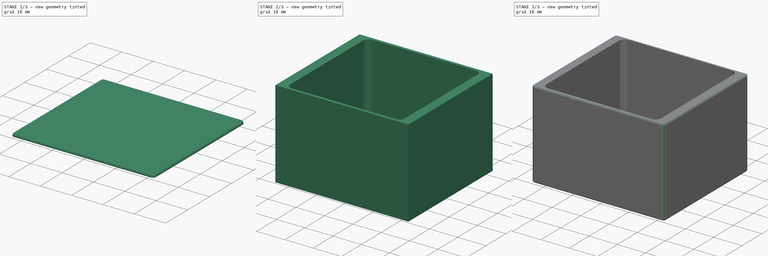
[diagram: build sequence overview — one tinted view per stage of 3, left to right]
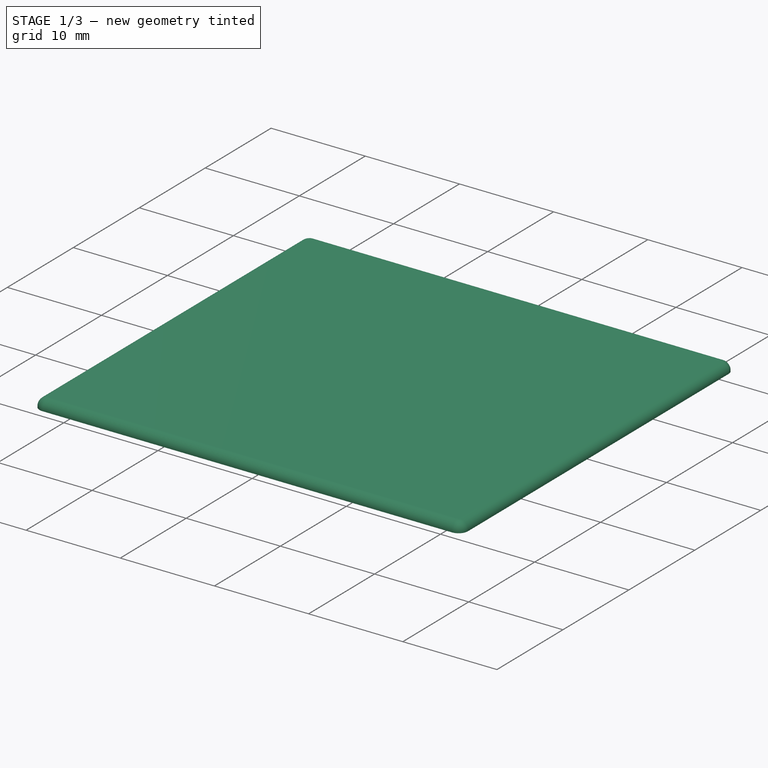
[diagram: stage 1 of 3 — iso view after this stage's code; geometry added in this stage tinted green]
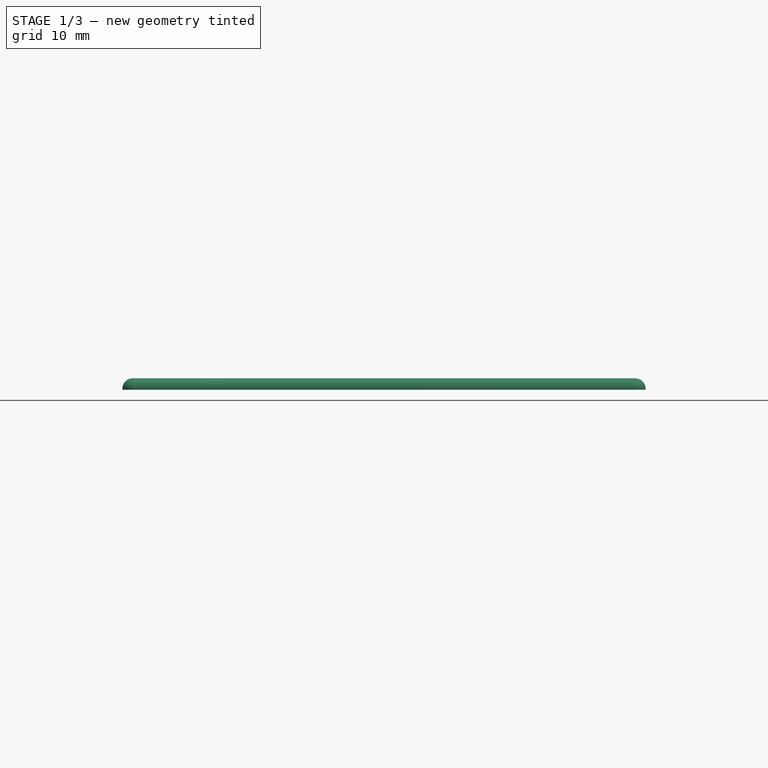
[diagram: stage 1 of 3 — front view after this stage's code; geometry added in this stage tinted green]
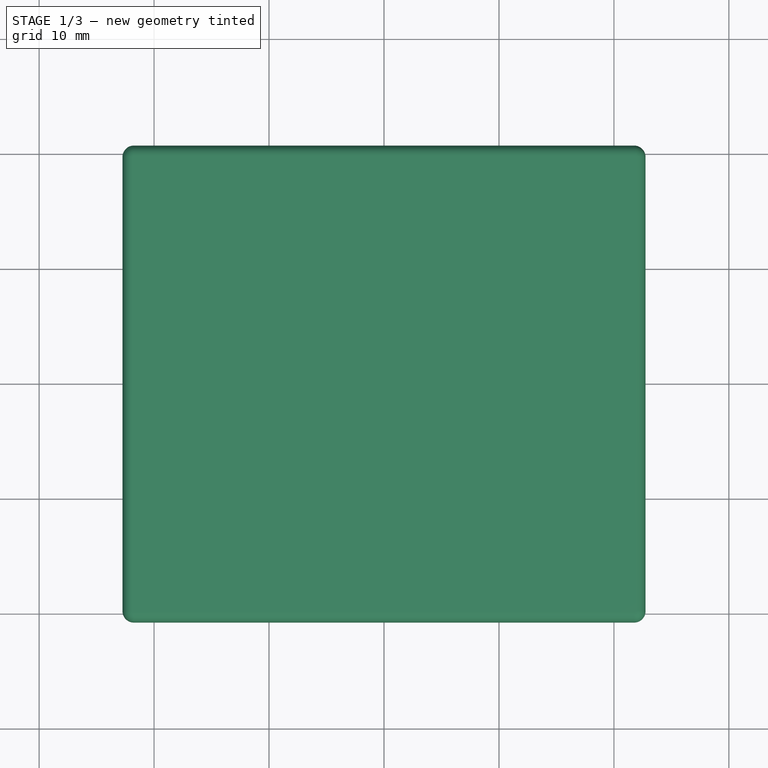
[diagram: stage 1 of 3 — top view after this stage's code; geometry added in this stage tinted green]
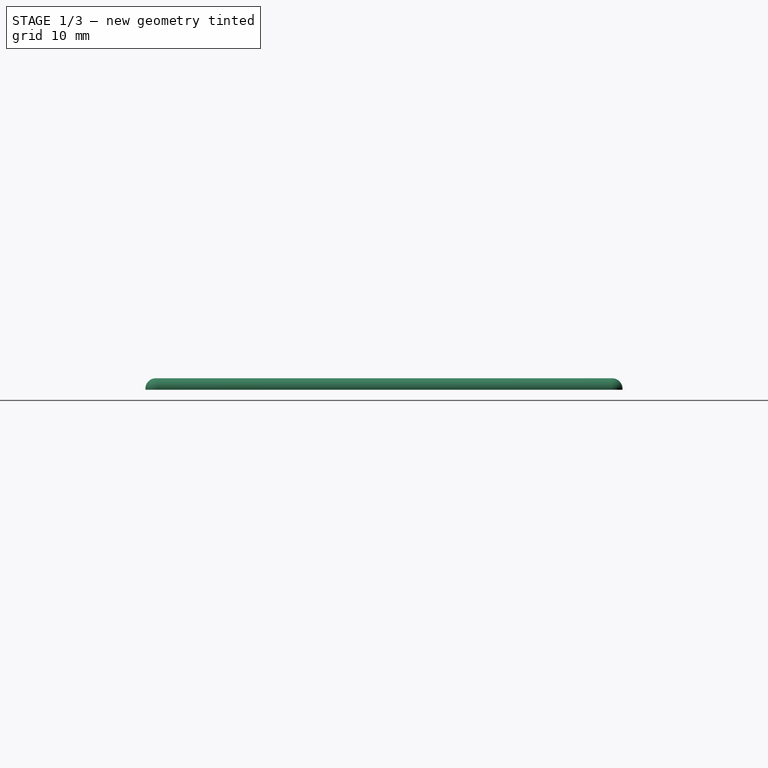
[diagram: stage 1 of 3 — right view after this stage's code; geometry added in this stage tinted green]
FCSTD DOCUMENT  (FreeCAD 0.21R33694 (Git))
Label: 热风枪固定铁盒
License: All rights reserved
LicenseURL: http://en.wikipedia.org/wiki/All_rights_reserved
objects: Sketcher::SketchObject×4, PartDesign::Fillet×4, PartDesign::Pad×2, PartDesign::Pocket×2, PartDesign::Body×2, App::Part×2
note: 22 computed .brp shape members not serialized (recipe doc carries the construction recipe); baked Part::Feature solids carry a one-line shape summary decoded from their .brp

FEATURE [PartDesign::Body] Body  label="实体"
  Group = -> [Sketch,Pad,Sketch001,Pocket,Fillet,Fillet001,Sketch002,Pocket001]
  Origin = -> Origin
  Tip = -> Pocket001
FEATURE [App::Part] Part  label="盒体"
  Group = -> [Body]
  Origin = -> Origin001
FEATURE [Sketcher::SketchObject] Sketch003
  FullyConstrained = true
  MapMode = 5
  Support = -> [XY_Plane003]
  sketch-geometry (4):
    g0: LineSegment StartX=-22.75 StartY=20.75 StartZ=0 EndX=22.75 EndY=20.75 EndZ=0
    g1: LineSegment StartX=22.75 StartY=20.75 StartZ=0 EndX=22.75 EndY=-20.75 EndZ=0
    g2: LineSegment StartX=22.75 StartY=-20.75 StartZ=0 EndX=-22.75 EndY=-20.75 EndZ=0
    g3: LineSegment StartX=-22.75 StartY=-20.75 StartZ=0 EndX=-22.75 EndY=20.75 EndZ=0
  constraints (11):
    c: Coincident(g0,g1)
    c: Coincident(g1,g2)
    c: Coincident(g2,g3)
    c: Coincident(g3,g0)
    c: Horizontal(g0)
    c: Horizontal(g2)
    c: Vertical(g1)
    c: Vertical(g3)
    c: DistanceX(g0,g0) = 45.5
    c: DistanceY(g3,g3) = 41.5
    c: Symmetric(g2,g0,g-1)
FEATURE [PartDesign::Pad] Pad001
  Direction = (0,0,1)
  Length = 1
  Length2 = 10
  Profile = -> Sketch003
  ReferenceAxis = -> Sketch003 [N_Axis]
  Type = 0
FEATURE [PartDesign::Fillet] Fillet002
  Base = -> Pad001 [Edge8,Edge1,Edge5,Edge2]
  BaseFeature = -> Pad001
  Radius = 1
  SupportTransform = false
  UseAllEdges = false
FEATURE [PartDesign::Fillet] Fillet003
  Base = -> Fillet002 [Edge20]
  BaseFeature = -> Fillet002
  Radius = 0.9
  SupportTransform = false
  UseAllEdges = false
FEATURE [PartDesign::Body] Body001  label="实体001"
  Group = -> [Sketch003,Pad001,Fillet002,Fillet003]
  Origin = -> Origin003
  Tip = -> Fillet003
FEATURE [App::Part] Part001  label="盖子"
  Group = -> [Body001]
  Origin = -> Origin002
  Placement = pos=(0,0,45) rot=(0,0,1;0rad)
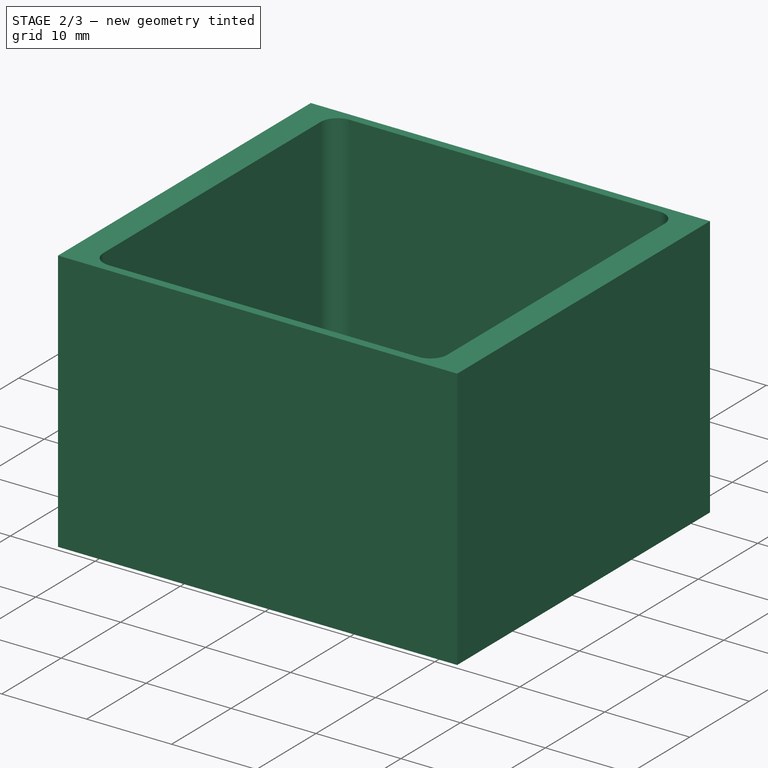
[diagram: stage 2 of 3 — iso view after this stage's code; geometry added in this stage tinted green]
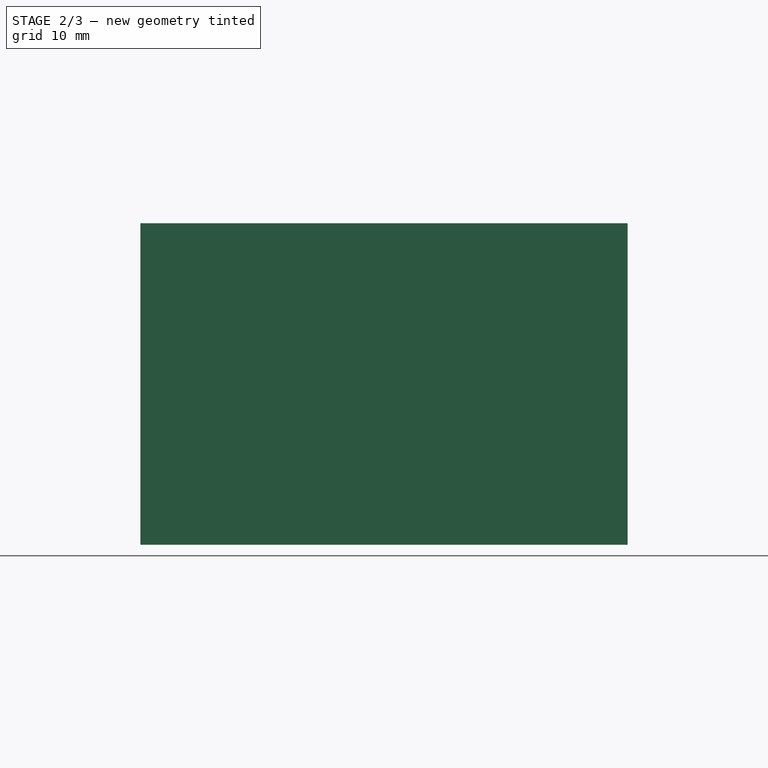
[diagram: stage 2 of 3 — front view after this stage's code; geometry added in this stage tinted green]
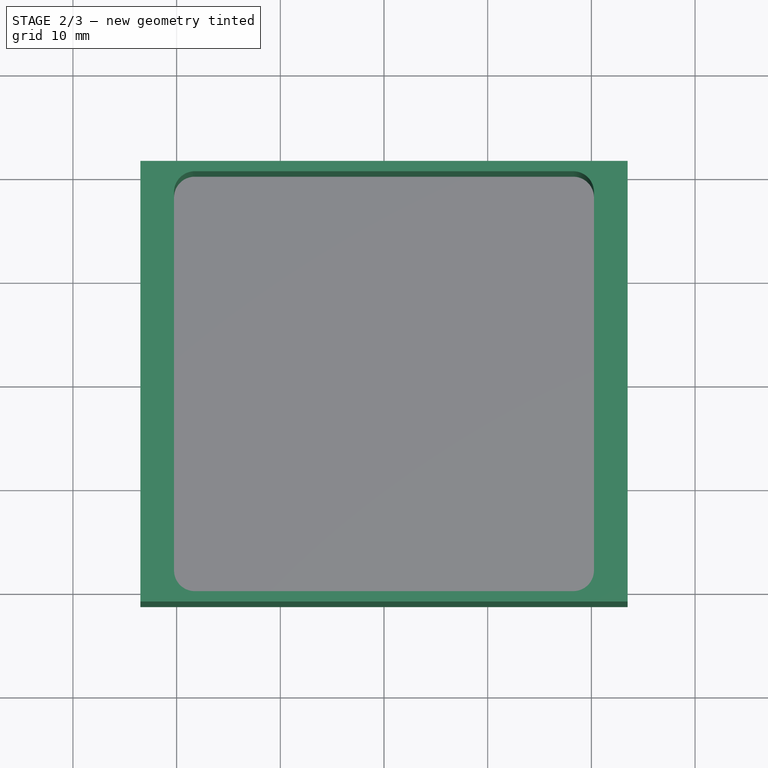
[diagram: stage 2 of 3 — top view after this stage's code; geometry added in this stage tinted green]
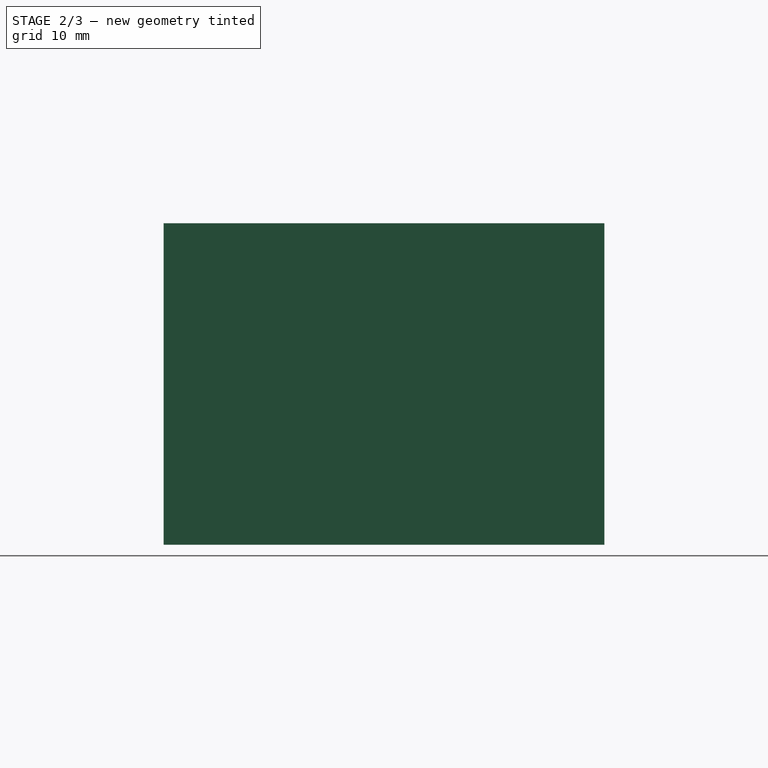
[diagram: stage 2 of 3 — right view after this stage's code; geometry added in this stage tinted green]
FEATURE [Sketcher::SketchObject] Sketch
  FullyConstrained = true
  MapMode = 5
  Support = -> [XY_Plane]
  sketch-geometry (4):
    g0: LineSegment StartX=-23.5 StartY=21.25 StartZ=0 EndX=23.5 EndY=21.25 EndZ=0
    g1: LineSegment StartX=23.5 StartY=21.25 StartZ=0 EndX=23.5 EndY=-21.25 EndZ=0
    g2: LineSegment StartX=23.5 StartY=-21.25 StartZ=0 EndX=-23.5 EndY=-21.25 EndZ=0
    g3: LineSegment StartX=-23.5 StartY=-21.25 StartZ=0 EndX=-23.5 EndY=21.25 EndZ=0
  constraints (11):
    c: Coincident(g0,g1)
    c: Coincident(g1,g2)
    c: Coincident(g2,g3)
    c: Coincident(g3,g0)
    c: Horizontal(g0)
    c: Horizontal(g2)
    c: Vertical(g1)
    c: Vertical(g3)
    c: DistanceX(g2,g2) = 47
    c: DistanceY(g3,g3) = 42.5
    c: Symmetric(g2,g0,g-1)
FEATURE [PartDesign::Pad] Pad
  Direction = (0,0,1)
  Length = 31
  Length2 = 10
  Profile = -> Sketch
  ReferenceAxis = -> Sketch [N_Axis]
  Type = 0
FEATURE [Sketcher::SketchObject] Sketch001
  ExternalGeometry = -> [Pad]
  FullyConstrained = true
  MapMode = 5
  Placement = pos=(0,0,31) rot=(0,0,1;0rad)
  Support = -> [Pad]
  sketch-geometry (8):
    g0: LineSegment StartX=-18.25 StartY=20.25 StartZ=0 EndX=18.25 EndY=20.25 EndZ=0
    g1: LineSegment StartX=20.25 StartY=18.25 StartZ=0 EndX=20.25 EndY=-18.25 EndZ=0
    g2: LineSegment StartX=18.25 StartY=-20.25 StartZ=0 EndX=-18.25 EndY=-20.25 EndZ=0
    g3: LineSegment StartX=-20.25 StartY=-18.25 StartZ=0 EndX=-20.25 EndY=18.25 EndZ=0
    g4: ArcOfCircle CenterX=-18.25 CenterY=18.25 CenterZ=0 NormalX=0 NormalY=0 NormalZ=1 AngleXU=0 Radius=2 StartAngle=1.5708 EndAngle=3.14159
    g5: ArcOfCircle CenterX=18.25 CenterY=18.25 CenterZ=0 NormalX=0 NormalY=0 NormalZ=1 AngleXU=0 Radius=2 StartAngle=7e-16 EndAngle=1.5708
    g6: ArcOfCircle CenterX=-18.25 CenterY=-18.25 CenterZ=0 NormalX=0 NormalY=0 NormalZ=1 AngleXU=0 Radius=2 StartAngle=3.14159 EndAngle=4.71239
    g7: ArcOfCircle CenterX=18.25 CenterY=-18.25 CenterZ=0 NormalX=0 NormalY=0 NormalZ=1 AngleXU=0 Radius=2 StartAngle=4.71239 EndAngle=6.28319
  constraints (20):
    c: Horizontal(g0)
    c: Horizontal(g2)
    c: Vertical(g1)
    c: Vertical(g3)
    c: Tangent(g3,g4) = 1.5708
    c: Tangent(g0,g4) = 1.5708
    c: Tangent(g0,g5) = 1.5708
    c: Tangent(g1,g5) = 1.5708
    c: Tangent(g3,g6) = 1.5708
    c: Tangent(g2,g6) = 1.5708
    c: Tangent(g2,g7) = 1.5708
    c: Tangent(g1,g7) = 1.5708
    c: Radius(g7) = 2
    c: Radius(g6) = 2
    c: Radius(g4) = 2
    c: Radius(g5) = 2
    c: Distance(g3,g1) = 40.5
    c: Distance(g0,g2) = 40.5
    c: Distance(g2,g-3) = 1
    c: Distance(g-1,g3) = 20.25
FEATURE [PartDesign::Pocket] Pocket
  BaseFeature = -> Pad
  Direction = (0,0,-1)
  Length = 30
  Length2 = 5
  Profile = -> Sketch001
  ReferenceAxis = -> Sketch001 [N_Axis]
  Type = 0
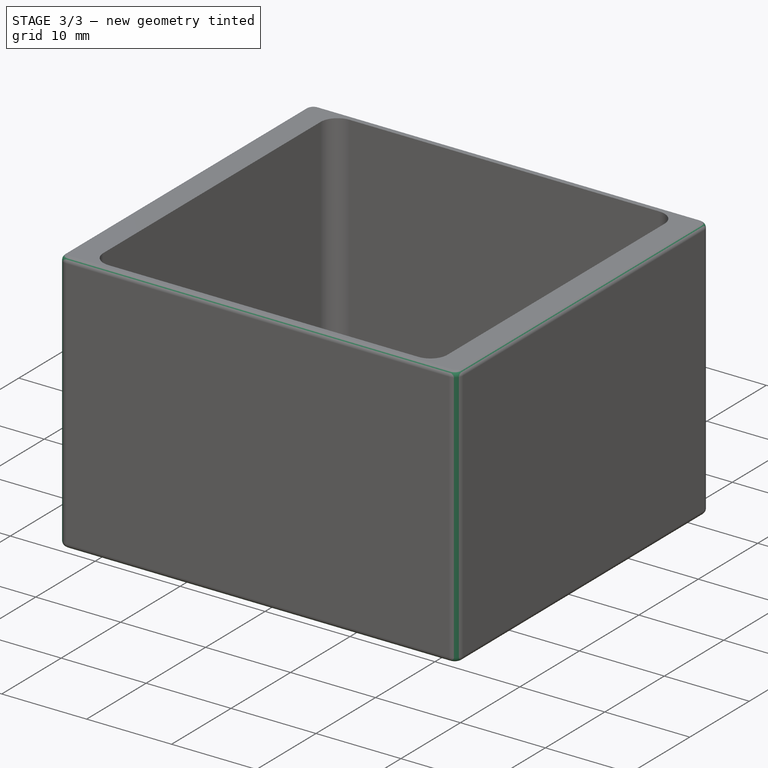
[diagram: stage 3 of 3 — iso view after this stage's code; geometry added in this stage tinted green]
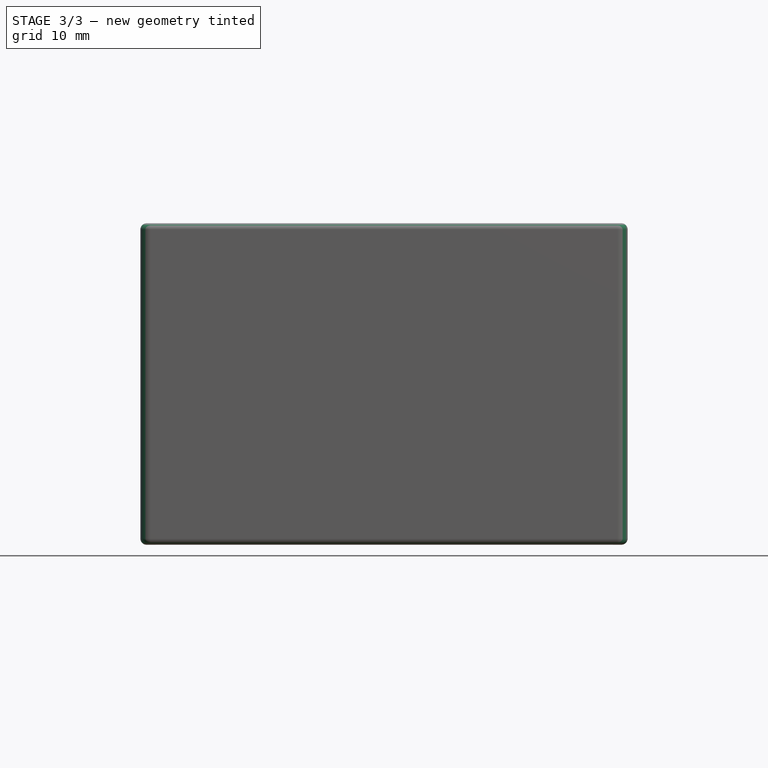
[diagram: stage 3 of 3 — front view after this stage's code; geometry added in this stage tinted green]
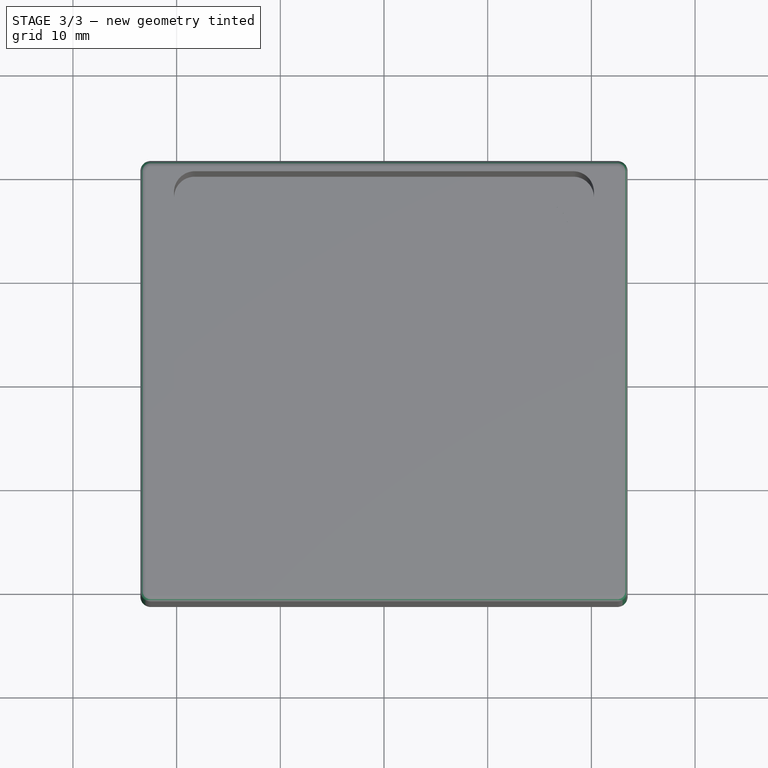
[diagram: stage 3 of 3 — top view after this stage's code; geometry added in this stage tinted green]
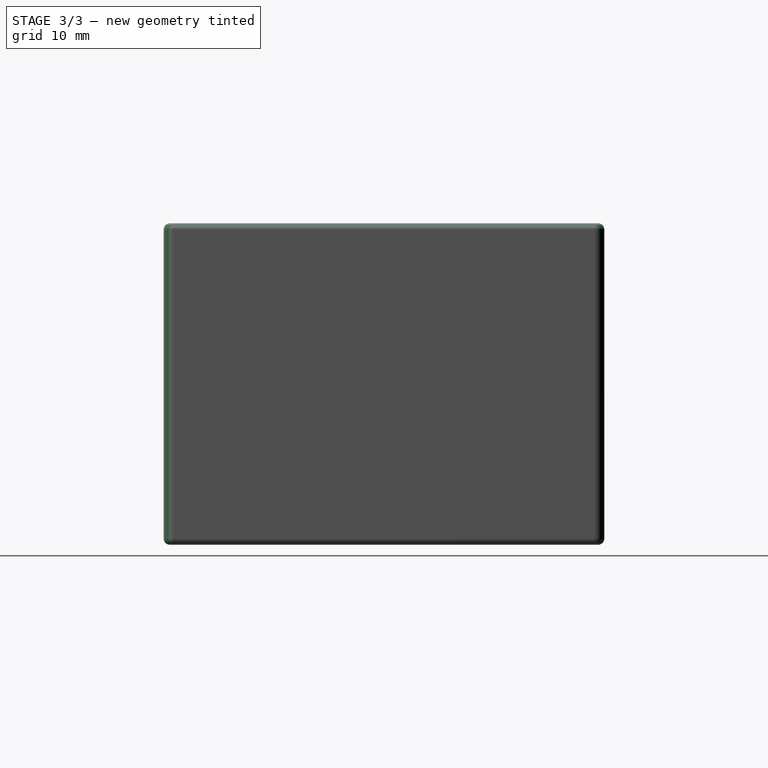
[diagram: stage 3 of 3 — right view after this stage's code; geometry added in this stage tinted green]
FEATURE [PartDesign::Fillet] Fillet
  Base = -> Pocket [Edge8,Edge2,Edge5,Edge1]
  BaseFeature = -> Pocket
  Radius = 1
  SupportTransform = false
  UseAllEdges = false
FEATURE [PartDesign::Fillet] Fillet001
  Base = -> Fillet [Edge20,Edge11]
  BaseFeature = -> Fillet
  Radius = 0.6
  SupportTransform = false
  UseAllEdges = false
FEATURE [Sketcher::SketchObject] Sketch002
  ExternalGeometry = -> [Fillet001]
  FullyConstrained = true
  MapMode = 5
  Placement = pos=(0,0,1) rot=(0,0,1;0rad)
  Support = -> [Fillet001]
  sketch-geometry (8):
    g0: ArcOfCircle CenterX=-15.25 CenterY=15.25 CenterZ=0 NormalX=0 NormalY=0 NormalZ=1 AngleXU=0 Radius=2.5 StartAngle=0 EndAngle=3.14159
    g1: ArcOfCircle CenterX=-15.25 CenterY=10.25 CenterZ=0 NormalX=0 NormalY=0 NormalZ=1 AngleXU=0 Radius=2.5 StartAngle=3.14159 EndAngle=6.28319
    g2: LineSegment StartX=-17.75 StartY=15.25 StartZ=0 EndX=-17.75 EndY=10.25 EndZ=0
    g3: LineSegment StartX=-12.75 StartY=10.25 StartZ=0 EndX=-12.75 EndY=15.25 EndZ=0
    g4: ArcOfCircle CenterX=15.25 CenterY=15.25 CenterZ=0 NormalX=0 NormalY=0 NormalZ=1 AngleXU=0 Radius=2.5 StartAngle=0 EndAngle=3.14159
    g5: ArcOfCircle CenterX=15.25 CenterY=10.25 CenterZ=0 NormalX=0 NormalY=0 NormalZ=1 AngleXU=0 Radius=2.5 StartAngle=3.14159 EndAngle=6.28319
    g6: LineSegment StartX=12.75 StartY=15.25 StartZ=0 EndX=12.75 EndY=10.25 EndZ=0
    g7: LineSegment StartX=17.75 StartY=10.25 StartZ=0 EndX=17.75 EndY=15.25 EndZ=0
  constraints (20):
    c: Tangent(g0,g2) = -1.5708
    c: Tangent(g2,g1) = -1.5708
    c: Tangent(g1,g3) = -1.5708
    c: Tangent(g3,g0) = -1.5708
    c: Equal(g0,g1)
    c: Tangent(g4,g6) = -1.5708
    c: Tangent(g6,g5) = -1.5708
    c: Tangent(g5,g7) = -1.5708
    c: Tangent(g7,g4) = -1.5708
    c: Equal(g4,g5)
    c: Vertical(g6)
    c: Vertical(g3)
    c: Equal(g3,g6)
    c: Equal(g1,g5)
    c: Horizontal(g5,g1)
    c: Distance(g1,g-4) = 2.5
    c: Distance(g5,g-6) = 2.5
    c: Distance(g5,g5) = 5
    c: Distance(g4,g-3) = 5
    c: Distance(g5,g4) = 5
FEATURE [PartDesign::Pocket] Pocket001
  BaseFeature = -> Fillet001
  Direction = (0,0,-1)
  Length = 5
  Length2 = 5
  Profile = -> Sketch002
  ReferenceAxis = -> Sketch002 [N_Axis]
  Type = 1
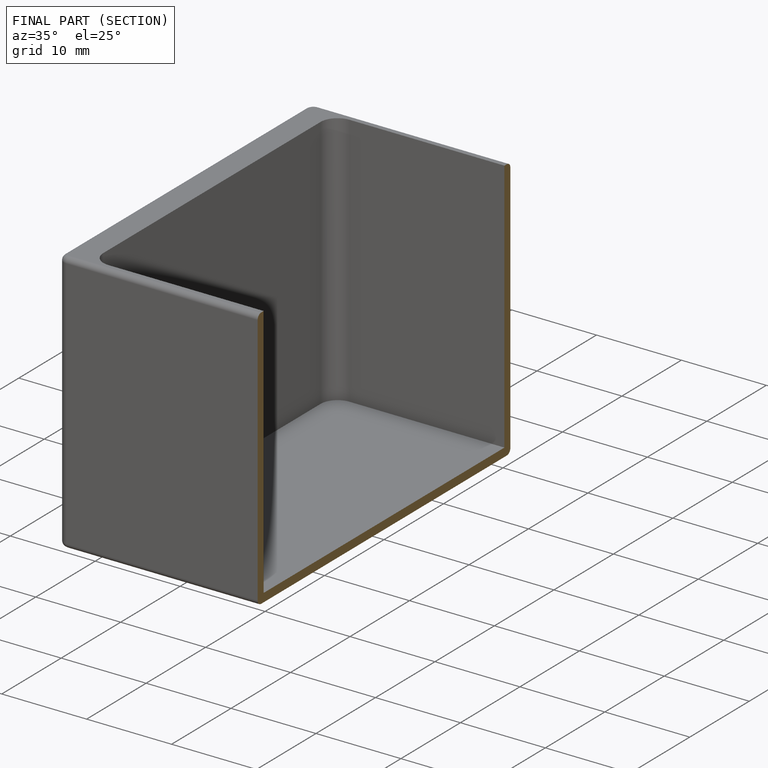
[diagram: finished part — half-section view (interior)]
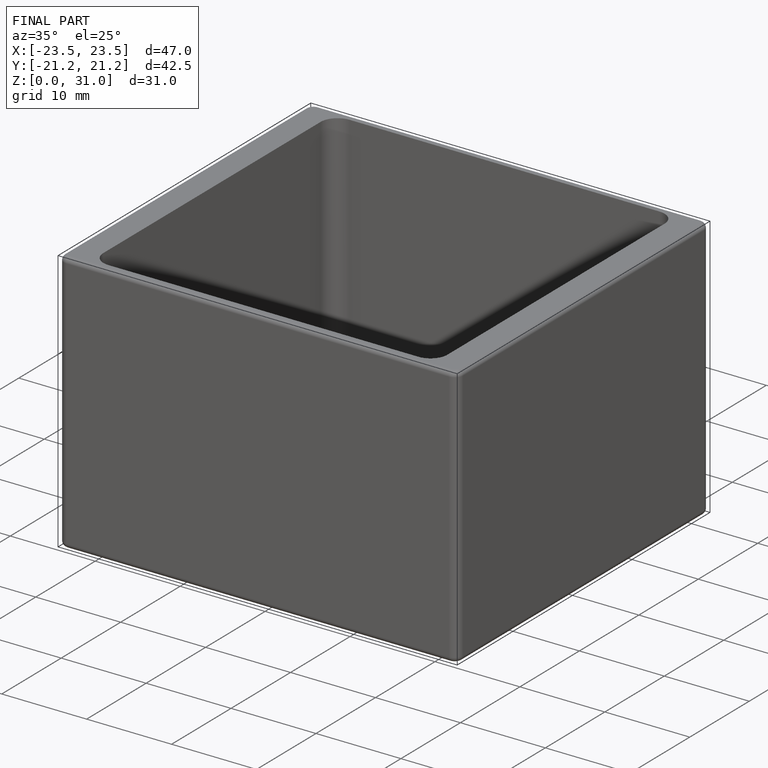
[diagram: finished part — iso view with bounding-box wireframe]
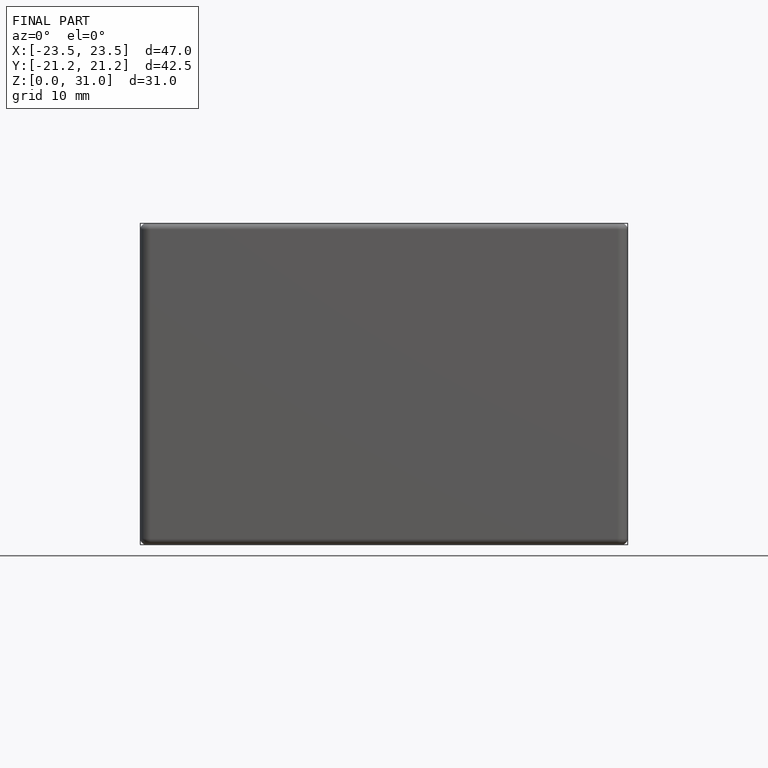
[diagram: finished part — front view with bounding-box wireframe]
